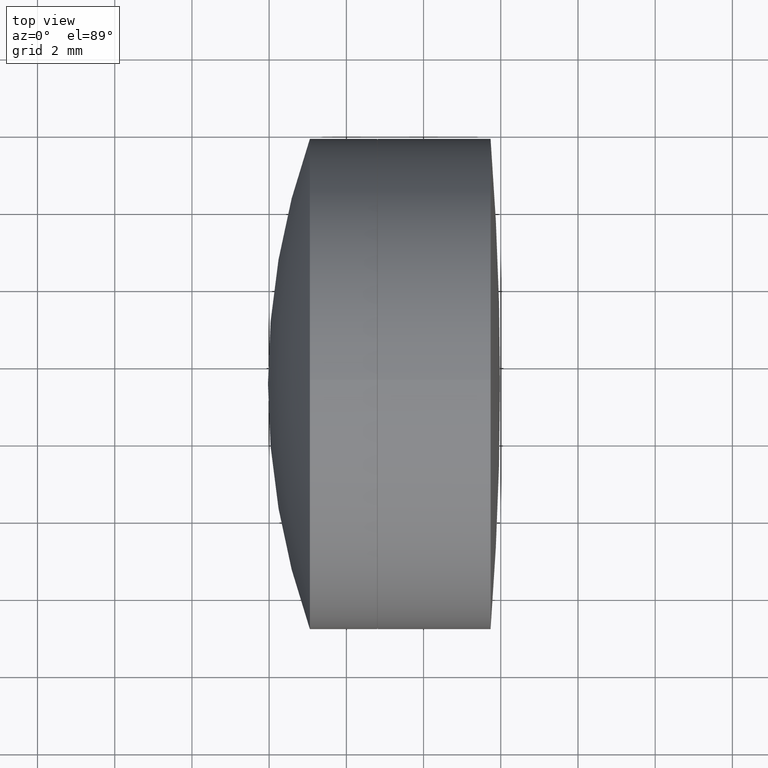
[diagram: clean part render]
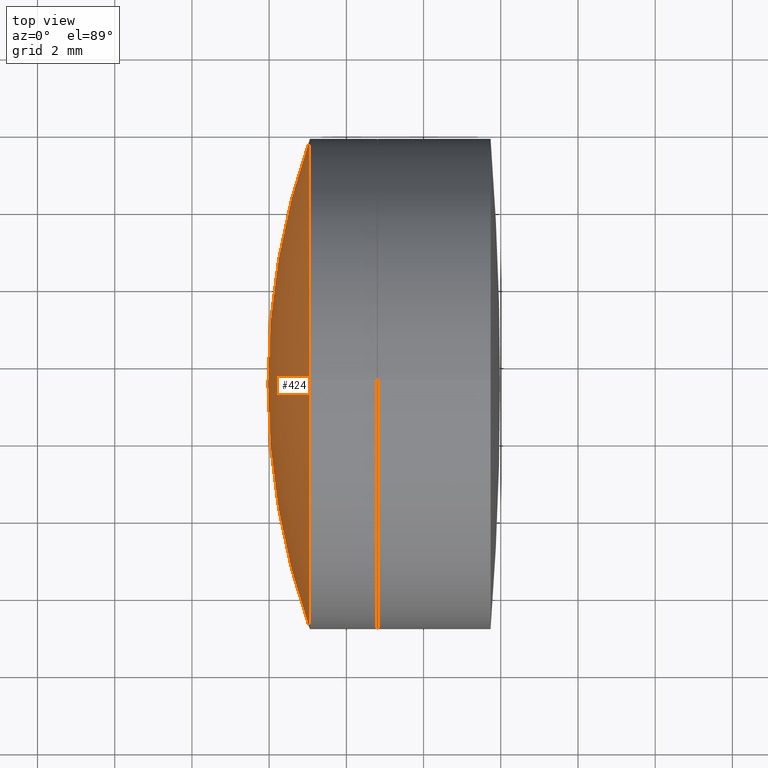
[diagram: same view with one face highlighted and labeled with its STEP entity id]
A machine part, top view. The second image highlights one B-rep face of the part: STEP entity #424.
In plain terms, the highlighted spherical surface has radius 19.12 mm.
Its self-contained STEP definition (entity closure, byte-faithful):
#10 = DIRECTION ( 'NONE',  ( 1.000000000000000000, 0.000000000000000000, 0.000000000000000000 ) ) ;
#12 = FACE_OUTER_BOUND ( 'NONE', #239, .T. ) ;
#26 = ORIENTED_EDGE ( 'NONE', *, *, #232, .T. ) ;
#40 = VERTEX_POINT ( 'NONE', #46 ) ;
#46 = CARTESIAN_POINT ( 'NONE',  ( -80.03096436547446046, 15.49148678616774966, -0.009771238364928054587 ) ) ;
#49 = SPHERICAL_SURFACE ( 'NONE', #396, 19.12000000000000455 ) ;
#64 = CARTESIAN_POINT ( 'NONE',  ( -78.94570583853140988, 15.49148678616774788, -0.009771238364928054587 ) ) ;
#67 = VERTEX_POINT ( 'NONE', #152 ) ;
#76 = VERTEX_POINT ( 'NONE', #333 ) ;
#77 = DIRECTION ( 'NONE',  ( -0.000000000000000000, 0.000000000000000000, 1.000000000000000000 ) ) ;
#90 = CARTESIAN_POINT ( 'NONE',  ( -78.94570583853140988, 15.49148678616774788, 6.340228761635072097 ) ) ;
#93 = CIRCLE ( 'NONE', #285, 6.349999999999999645 ) ;
#97 = DIRECTION ( 'NONE',  ( 0.000000000000000000, 0.000000000000000000, 1.000000000000000000 ) ) ;
#111 = EDGE_CURVE ( 'NONE', #76, #439, #323, .T. ) ;
#123 = CIRCLE ( 'NONE', #134, 19.12000000000000455 ) ;
#132 = DIRECTION ( 'NONE',  ( -1.000000000000000000, -0.000000000000000000, -0.000000000000000000 ) ) ;
#134 = AXIS2_PLACEMENT_3D ( 'NONE', #316, #378, #171 ) ;
#140 = CARTESIAN_POINT ( 'NONE',  ( -78.94570583853140988, 15.49148678616774788, -0.009771238364928054587 ) ) ;
#152 = CARTESIAN_POINT ( 'NONE',  ( -78.94570583853140988, 21.84148678616774575, -0.009771238364928054587 ) ) ;
#171 = DIRECTION ( 'NONE',  ( 0.000000000000000000, 1.000000000000000000, 1.224476499064270716E-16 ) ) ;
#194 = EDGE_CURVE ( 'NONE', #439, #67, #93, .T. ) ;
#197 = AXIS2_PLACEMENT_3D ( 'NONE', #319, #77, #10 ) ;
#201 = ORIENTED_EDGE ( 'NONE', *, *, #297, .F. ) ;
#232 = EDGE_CURVE ( 'NONE', #67, #40, #395, .T. ) ;
#239 = EDGE_LOOP ( 'NONE', ( #201, #432, #309, #26 ) ) ;
#254 = DIRECTION ( 'NONE',  ( -0.000000000000000000, 0.000000000000000000, -1.000000000000000000 ) ) ;
#256 = CARTESIAN_POINT ( 'NONE',  ( -60.91096436547447013, 15.49148678616774788, -0.009771238364928054587 ) ) ;
#278 = DIRECTION ( 'NONE',  ( -1.000000000000000000, -0.000000000000000000, -0.000000000000000000 ) ) ;
#285 = AXIS2_PLACEMENT_3D ( 'NONE', #140, #278, #375 ) ;
#297 = EDGE_CURVE ( 'NONE', #76, #40, #123, .T. ) ;
#300 = AXIS2_PLACEMENT_3D ( 'NONE', #64, #132, #97 ) ;
#309 = ORIENTED_EDGE ( 'NONE', *, *, #194, .T. ) ;
#316 = CARTESIAN_POINT ( 'NONE',  ( -60.91096436547447013, 15.49148678616774788, -0.009771238364928054587 ) ) ;
#319 = CARTESIAN_POINT ( 'NONE',  ( -60.91096436547447013, 15.49148678616774788, -0.009771238364928054587 ) ) ;
#323 = CIRCLE ( 'NONE', #300, 6.349999999999999645 ) ;
#333 = CARTESIAN_POINT ( 'NONE',  ( -78.94570583853140988, 9.141486786167750012, -0.009771238364928831743 ) ) ;
#375 = DIRECTION ( 'NONE',  ( 0.000000000000000000, 0.000000000000000000, 1.000000000000000000 ) ) ;
#378 = DIRECTION ( 'NONE',  ( 0.000000000000000000, 1.224646799147353207E-16, -1.000000000000000000 ) ) ;
#392 = DIRECTION ( 'NONE',  ( 0.000000000000000000, 1.000000000000000000, 0.000000000000000000 ) ) ;
#395 = CIRCLE ( 'NONE', #197, 19.12000000000000455 ) ;
#396 = AXIS2_PLACEMENT_3D ( 'NONE', #256, #254, #392 ) ;
#424 = ADVANCED_FACE ( 'NONE', ( #12 ), #49, .T. ) ;
#432 = ORIENTED_EDGE ( 'NONE', *, *, #111, .T. ) ;
#439 = VERTEX_POINT ( 'NONE', #90 ) ;